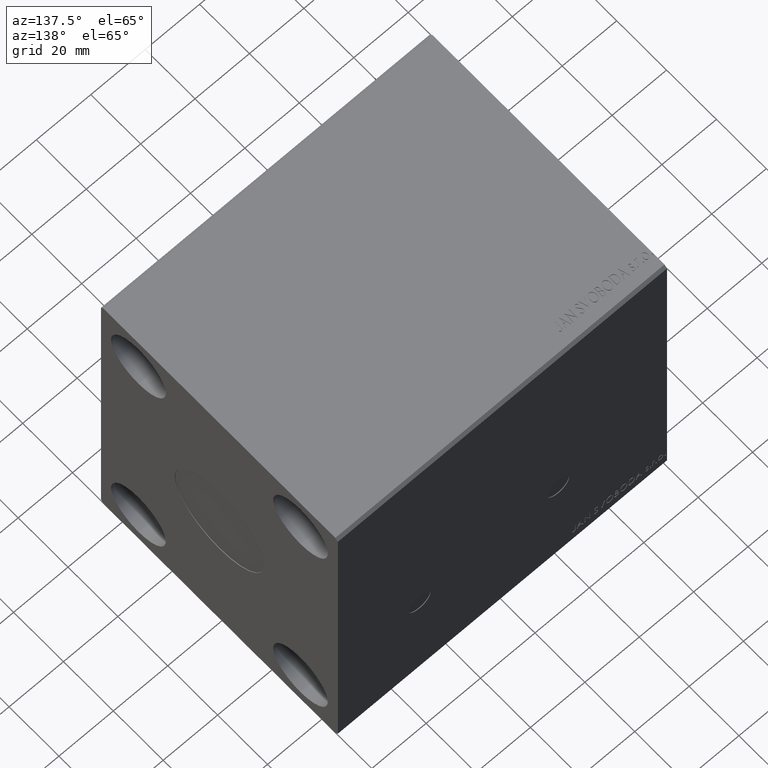
[diagram: clean part render]
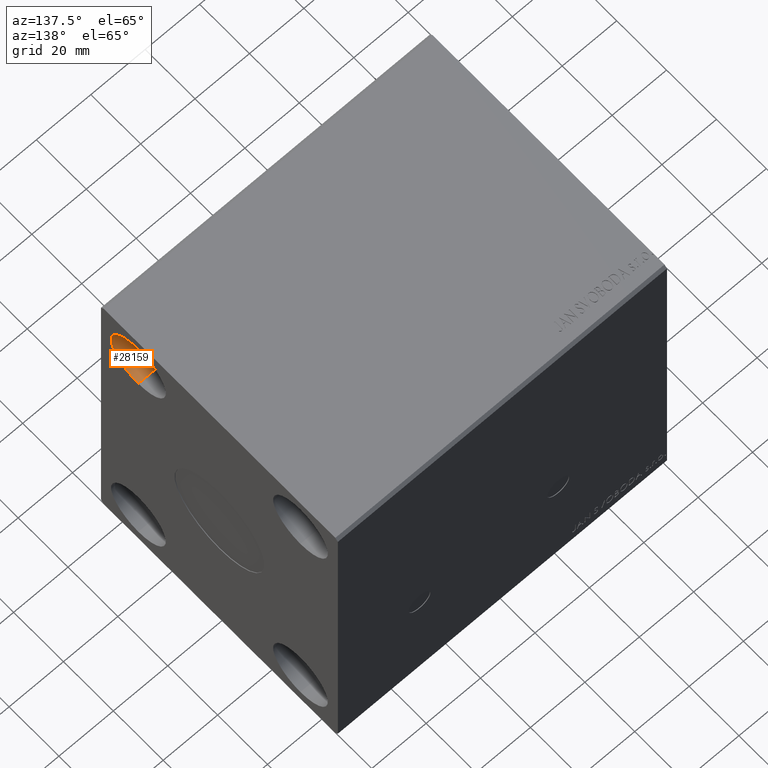
[diagram: same view with one face highlighted and labeled with its STEP entity id]
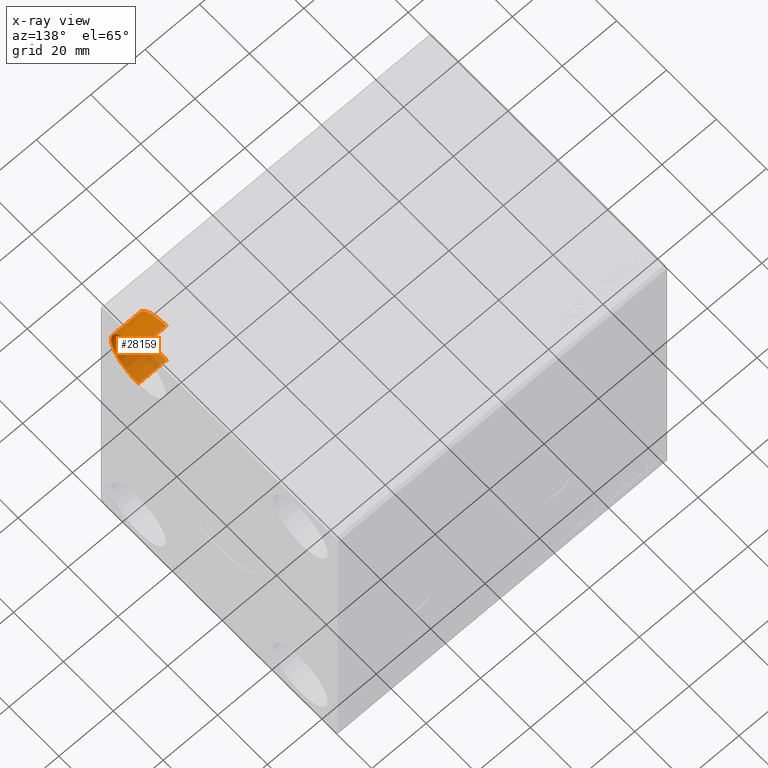
[diagram: x-ray of the same camera — body ghosted, the highlighted face saturated]
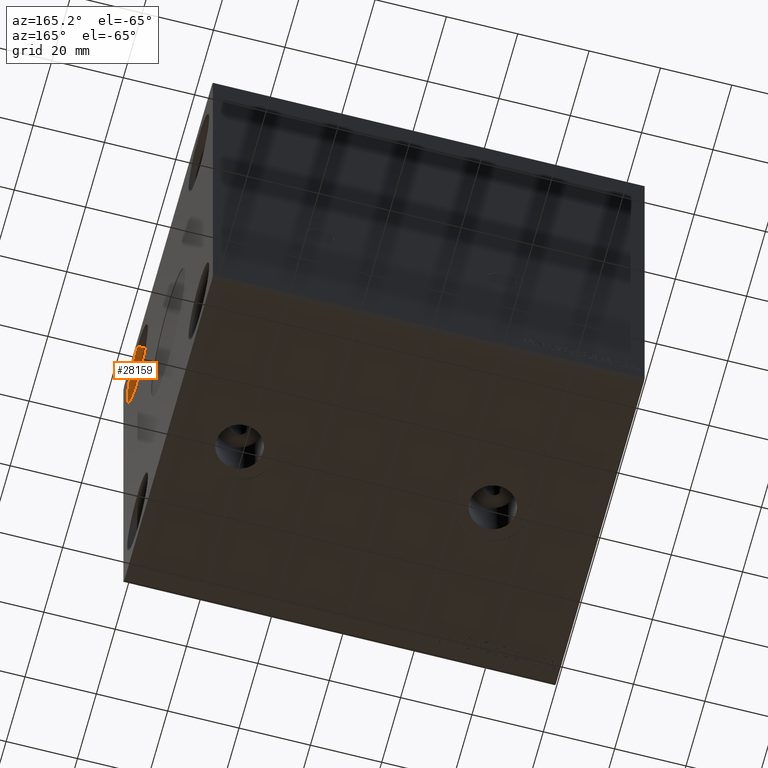
[diagram: same view with one face highlighted and labeled with its STEP entity id]
A machine part, auxiliary view. The second image highlights one B-rep face of the part: STEP entity #28159.
The next image is the same camera in x-ray: the body ghosted, the highlighted face saturated — about 15% of this face is hidden behind the body in this view.
A second angle (auxiliary view) of the same face is appended — the face is thin or edge-on in the first view.
In plain terms, the highlighted cylindrical surface (partial cylindrical patch) has radius 11 mm, axis along (1, -0, -0).
Its self-contained STEP definition (entity closure, byte-faithful):
#1790 = VECTOR ( 'NONE', #12817, 1000.000000000000000 ) ;
#3251 = VERTEX_POINT ( 'NONE', #18577 ) ;
#4235 = EDGE_CURVE ( 'NONE', #15920, #17921, #38092, .T. ) ;
#6158 = CARTESIAN_POINT ( 'NONE',  ( 110.6699999999999875, -32.50000000000000000, 58.50000000000000000 ) ) ;
#7772 = DIRECTION ( 'NONE',  ( 1.000000000000000000, -0.000000000000000000, -0.000000000000000000 ) ) ;
#7815 = ORIENTED_EDGE ( 'NONE', *, *, #4235, .F. ) ;
#8031 = DIRECTION ( 'NONE',  ( -1.000000000000000000, -0.000000000000000000, -0.000000000000000000 ) ) ;
#8225 = CARTESIAN_POINT ( 'NONE',  ( 110.6699999999999875, -32.50000000000000000, 36.50000000000000711 ) ) ;
#10630 = AXIS2_PLACEMENT_3D ( 'NONE', #41640, #41419, #12187 ) ;
#11246 = CARTESIAN_POINT ( 'NONE',  ( 121.0000000000000000, -32.50000000000000000, 47.50000000000000000 ) ) ;
#11429 = FACE_OUTER_BOUND ( 'NONE', #13209, .T. ) ;
#11885 = DIRECTION ( 'NONE',  ( 0.000000000000000000, 0.000000000000000000, 1.000000000000000000 ) ) ;
#12187 = DIRECTION ( 'NONE',  ( 0.000000000000000000, 0.000000000000000000, 1.000000000000000000 ) ) ;
#12817 = DIRECTION ( 'NONE',  ( 1.000000000000000000, -0.000000000000000000, -0.000000000000000000 ) ) ;
#13209 = EDGE_LOOP ( 'NONE', ( #34953, #31252, #36862, #7815 ) ) ;
#15920 = VERTEX_POINT ( 'NONE', #25235 ) ;
#17229 = CARTESIAN_POINT ( 'NONE',  ( 110.6699999999999875, -32.50000000000000000, 47.50000000000000000 ) ) ;
#17636 = AXIS2_PLACEMENT_3D ( 'NONE', #11246, #8031, #11885 ) ;
#17921 = VERTEX_POINT ( 'NONE', #39586 ) ;
#18531 = DIRECTION ( 'NONE',  ( 1.000000000000000000, -0.000000000000000000, -0.000000000000000000 ) ) ;
#18577 = CARTESIAN_POINT ( 'NONE',  ( 110.6699999999999875, -32.50000000000000000, 58.50000000000000000 ) ) ;
#20885 = DIRECTION ( 'NONE',  ( 0.000000000000000000, 0.000000000000000000, -1.000000000000000000 ) ) ;
#22856 = VECTOR ( 'NONE', #18531, 1000.000000000000000 ) ;
#23638 = AXIS2_PLACEMENT_3D ( 'NONE', #17229, #7772, #20885 ) ;
#25235 = CARTESIAN_POINT ( 'NONE',  ( 110.6699999999999875, -32.50000000000000000, 36.50000000000000711 ) ) ;
#25606 = CARTESIAN_POINT ( 'NONE',  ( 121.0000000000000000, -32.50000000000000000, 58.50000000000000000 ) ) ;
#27911 = CIRCLE ( 'NONE', #17636, 10.99999999999999645 ) ;
#28159 = ADVANCED_FACE ( 'NONE', ( #11429 ), #36804, .F. ) ;
#29212 = EDGE_CURVE ( 'NONE', #15920, #3251, #33262, .T. ) ;
#30105 = VERTEX_POINT ( 'NONE', #25606 ) ;
#31252 = ORIENTED_EDGE ( 'NONE', *, *, #31950, .T. ) ;
#31950 = EDGE_CURVE ( 'NONE', #3251, #30105, #41840, .T. ) ;
#33262 = CIRCLE ( 'NONE', #10630, 10.99999999999999645 ) ;
#34953 = ORIENTED_EDGE ( 'NONE', *, *, #29212, .T. ) ;
#36804 = CYLINDRICAL_SURFACE ( 'NONE', #23638, 10.99999999999999645 ) ;
#36862 = ORIENTED_EDGE ( 'NONE', *, *, #38685, .F. ) ;
#38092 = LINE ( 'NONE', #8225, #22856 ) ;
#38685 = EDGE_CURVE ( 'NONE', #17921, #30105, #27911, .T. ) ;
#39586 = CARTESIAN_POINT ( 'NONE',  ( 121.0000000000000000, -32.50000000000000000, 36.50000000000000711 ) ) ;
#41419 = DIRECTION ( 'NONE',  ( -1.000000000000000000, -0.000000000000000000, -0.000000000000000000 ) ) ;
#41640 = CARTESIAN_POINT ( 'NONE',  ( 110.6699999999999875, -32.50000000000000000, 47.50000000000000000 ) ) ;
#41840 = LINE ( 'NONE', #6158, #1790 ) ;